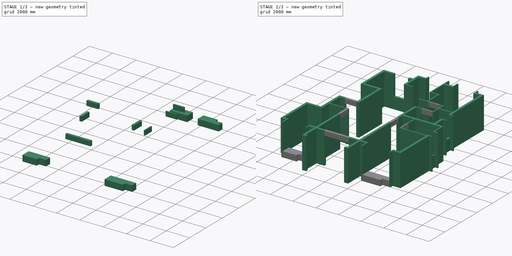
[diagram: build sequence overview — one tinted view per stage of 2, left to right]
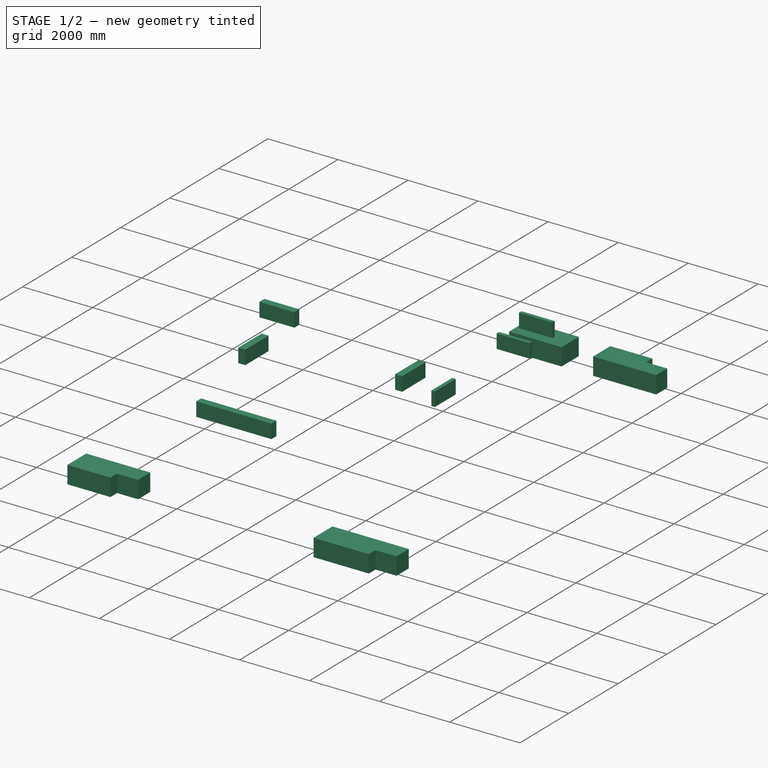
[diagram: stage 1 of 2 — iso view after this stage's code; geometry added in this stage tinted green]
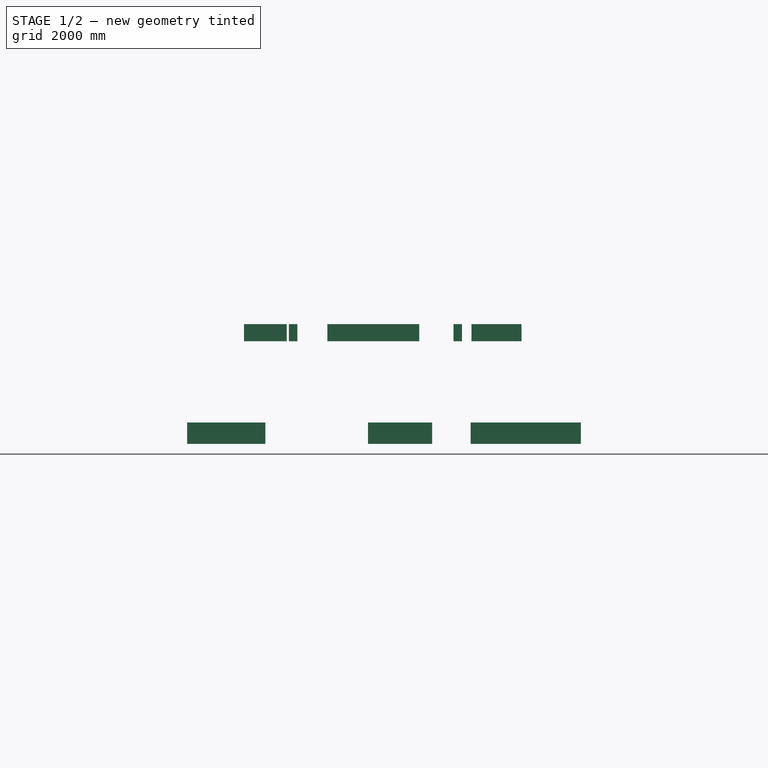
[diagram: stage 1 of 2 — front view after this stage's code; geometry added in this stage tinted green]
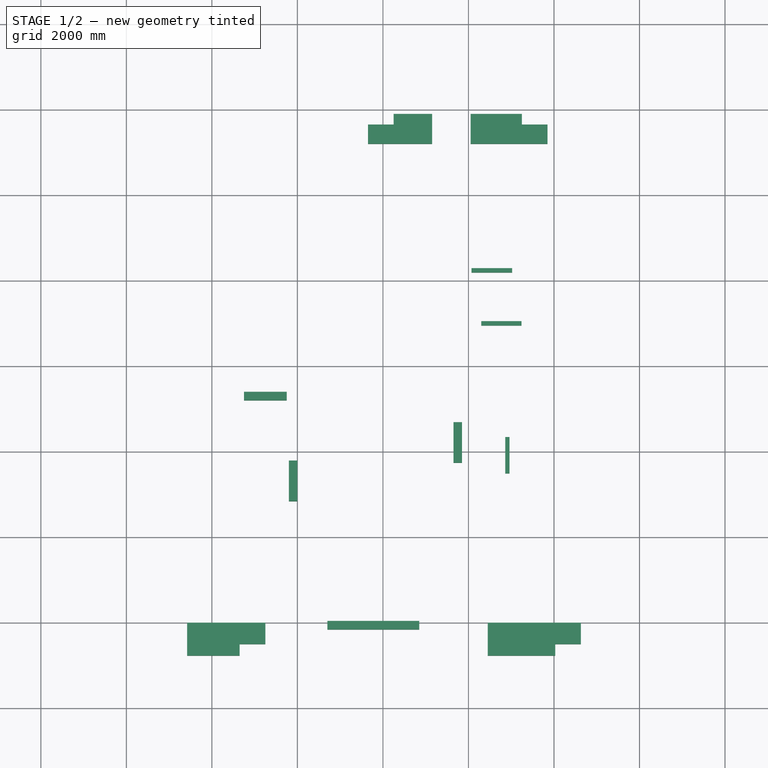
[diagram: stage 1 of 2 — top view after this stage's code; geometry added in this stage tinted green]
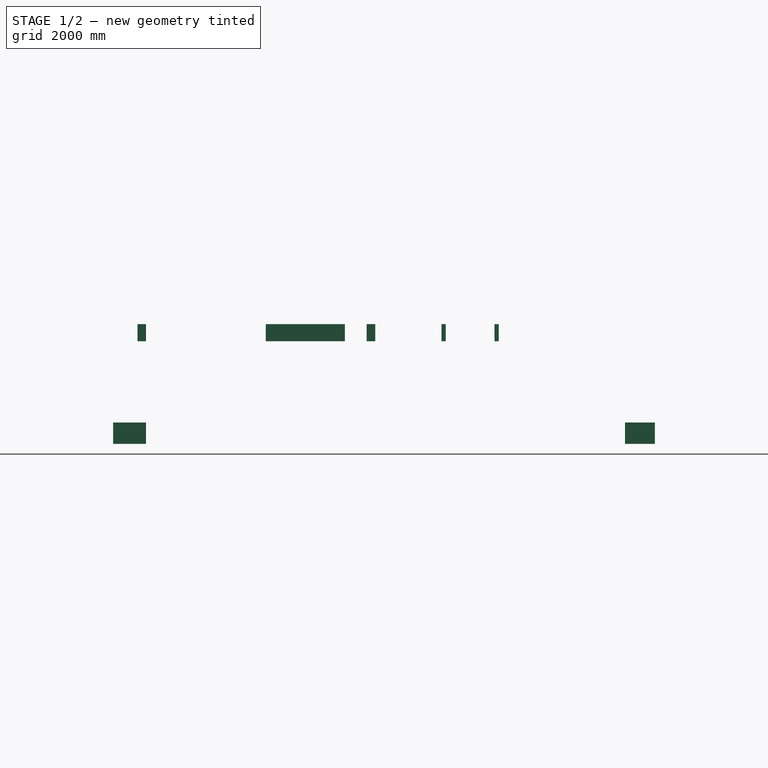
[diagram: stage 1 of 2 — right view after this stage's code; geometry added in this stage tinted green]
FCSTD DOCUMENT  (FreeCAD 1.0R39109 (Git))
Label: qiaoqiao
License: All rights reserved
objects: Sketcher::SketchObject×4, PartDesign::Body×4, PartDesign::Pad×4, App::Part×1, PartDesign::SubShapeBinder×1
note: 25 computed .brp shape members not serialized (recipe doc carries the construction recipe); baked Part::Feature solids carry a one-line shape summary decoded from their .brp

FEATURE [PartDesign::Body] Body001  label="Walls"
  AllowCompound = true
  Group = -> [Binder,Pad]
  Origin = -> Origin002
  Tip = -> Pad
FEATURE [Sketcher::SketchObject] Sketch002
  ArcFitTolerance = 1e-06
  AttachmentSupport = -> [XY_Plane003]
  FullyConstrained = true
  MakeInternals = false
  MapMode = 5
  sketch-geometry (24):
    g0: LineSegment StartX=4450 StartY=0 StartZ=0 EndX=6630 EndY=0 EndZ=0
    g1: LineSegment StartX=6630 StartY=0 StartZ=0 EndX=6630 EndY=-500 EndZ=0
    g2: LineSegment StartX=6630 StartY=-500 StartZ=0 EndX=6030 EndY=-500 EndZ=0
    g3: LineSegment StartX=6030 StartY=-500 StartZ=0 EndX=6030 EndY=-770 EndZ=0
    g4: LineSegment StartX=6030 StartY=-770 StartZ=0 EndX=4450 EndY=-770 EndZ=0
    g5: LineSegment StartX=4450 StartY=-770 StartZ=0 EndX=4450 EndY=0 EndZ=0
    g6: LineSegment StartX=-2580 StartY=0 StartZ=0 EndX=-750 EndY=0 EndZ=0
    g7: LineSegment StartX=-750 StartY=0 StartZ=0 EndX=-750 EndY=-500 EndZ=0
    g8: LineSegment StartX=-750 StartY=-500 StartZ=0 EndX=-1350 EndY=-500 EndZ=0
    g9: LineSegment StartX=-1350 StartY=-500 StartZ=0 EndX=-1350 EndY=-770 EndZ=0
    g10: LineSegment StartX=-1350 StartY=-770 StartZ=0 EndX=-2580 EndY=-770 EndZ=0
    g11: LineSegment StartX=-2580 StartY=-770 StartZ=0 EndX=-2580 EndY=0 EndZ=0
    g12: LineSegment StartX=1650 StartY=11200 StartZ=0 EndX=3150 EndY=11200 EndZ=0
    g13: LineSegment StartX=3150 StartY=11200 StartZ=0 EndX=3150 EndY=11900 EndZ=0
    g14: LineSegment StartX=3150 StartY=11900 StartZ=0 EndX=2250 EndY=11900 EndZ=0
    g15: LineSegment StartX=2250 StartY=11900 StartZ=0 EndX=2250 EndY=11650 EndZ=0
    g16: LineSegment StartX=2250 StartY=11650 StartZ=0 EndX=1650 EndY=11650 EndZ=0
    g17: LineSegment StartX=1650 StartY=11650 StartZ=0 EndX=1650 EndY=11200 EndZ=0
    g18: LineSegment StartX=4050 StartY=11900 StartZ=0 EndX=5250 EndY=11900 EndZ=0
    g19: LineSegment StartX=5250 StartY=11900 StartZ=0 EndX=5250 EndY=11650 EndZ=0
    g20: LineSegment StartX=5250 StartY=11650 StartZ=0 EndX=5850 EndY=11650 EndZ=0
    g21: LineSegment StartX=5850 StartY=11650 StartZ=0 EndX=5850 EndY=11200 EndZ=0
    g22: LineSegment StartX=5850 StartY=11200 StartZ=0 EndX=4050 EndY=11200 EndZ=0
    g23: LineSegment StartX=4050 StartY=11200 StartZ=0 EndX=4050 EndY=11900 EndZ=0
  constraints (72):
    c: Horizontal(g0)
    c: Coincident(g0,g1)
    c: Coincident(g1,g2)
    c: Coincident(g2,g3)
    c: Coincident(g3,g4)
    c: Horizontal(g4)
    c: Coincident(g4,g5)
    c: Coincident(g5,g0)
    c: Vertical(g5)
    c: Vertical(g3)
    c: Vertical(g1)
    c: Horizontal(g2)
    c: PointOnObject(g0,g-1)
    c: DistanceX(g-1,g0) = 4450
    c: DistanceY(g4,g-1) = 770
    c: DistanceX(g-1,g0) = 6630
    c: DistanceY(g1,g-1) = 500
    c: DistanceX(g2,g2) = 600
    c: PointOnObject(g6,g-1)
    c: Coincident(g6,g7)
    c: Vertical(g7)
    c: Coincident(g7,g8)
    c: Horizontal(g8)
    c: Coincident(g8,g9)
    c: Coincident(g9,g10)
    c: Coincident(g10,g11)
    c: Coincident(g11,g6)
    c: Vertical(g11)
    c: Vertical(g9)
    c: Horizontal(g10)
    c: Horizontal(g6)
    c: DistanceX(g8,g8) = 600
    c: DistanceX(g6,g-1) = 750
    c: DistanceY(g7,g7) = 500
    c: DistanceX(g6,g-1) = 2580
    c: DistanceY(g10,g-1) = 770
    c: Horizontal(g12)
    c: Coincident(g12,g13)
    c: Vertical(g13)
    c: Coincident(g13,g14)
    c: Coincident(g14,g15)
    c: Coincident(g15,g16)
    c: Coincident(g16,g17)
    c: Coincident(g17,g12)
    c: Vertical(g17)
    c: Horizontal(g16)
    c: Vertical(g15)
    c: Horizontal(g14)
    c: DistanceX(g-1,g12) = 1650
    c: DistanceY(g-1,g12) = 11200
    c: DistanceX(g-1,g12) = 3150
    c: DistanceY(g-1,g13) = 11900
    c: DistanceY(g-1,g16) = 11650
    c: DistanceX(g16,g16) = 600
    c: Horizontal(g18)
    c: Coincident(g18,g19)
    c: Coincident(g19,g20)
    c: Coincident(g20,g21)
    c: Coincident(g21,g22)
    c: Horizontal(g22)
    c: Coincident(g22,g23)
    c: Coincident(g23,g18)
    c: Vertical(g23)
    c: Vertical(g21)
    c: Horizontal(g20)
    c: Vertical(g19)
    c: PointOnObject(g22,g12)
    c: PointOnObject(g18,g14)
    c: DistanceX(g20,g20) = 600
    c: DistanceX(g-1,g21) = 5850
    c: PointOnObject(g19,g16)
    c: DistanceX(g-1,g22) = 4050
FEATURE [PartDesign::Pad] Pad001
  Direction = (0,0,1)
  Length = 500
  Length2 = 10
  Profile = -> Sketch002
  ReferenceAxis = -> Sketch002 [N_Axis]
  Suppressed = false
  Type = 0
FEATURE [PartDesign::Body] Body002  label="Window Sills"
  AllowCompound = true
  Group = -> [Sketch002,Pad001,Sketch003,Pad002]
  Origin = -> Origin003
  Tip = -> Pad002
FEATURE [Sketcher::SketchObject] Sketch004
  ArcFitTolerance = 1e-06
  AttachmentOffset = pos=(0,0,2800) rot=(0,0,1;0rad)
  AttachmentSupport = -> [XY_Plane004]
  FullyConstrained = true
  MakeInternals = false
  MapMode = 5
  Placement = pos=(0,0,2800) rot=(0,0,1;0rad)
  sketch-geometry (28):
    g0: LineSegment StartX=-200 StartY=3750 StartZ=0 EndX=-200 EndY=2800 EndZ=0
    g1: LineSegment StartX=-200 StartY=2800 StartZ=0 EndX=0 EndY=2800 EndZ=0
    g2: LineSegment StartX=0 StartY=2800 StartZ=0 EndX=0 EndY=3750 EndZ=0
    g3: LineSegment StartX=0 StartY=3750 StartZ=0 EndX=-200 EndY=3750 EndZ=0
    g4: LineSegment StartX=700 StartY=0 StartZ=0 EndX=700 EndY=-200 EndZ=0
    g5: LineSegment StartX=700 StartY=-200 StartZ=0 EndX=2850 EndY=-200 EndZ=0
    g6: LineSegment StartX=2850 StartY=-200 StartZ=0 EndX=2850 EndY=0 EndZ=0
    g7: LineSegment StartX=2850 StartY=0 StartZ=0 EndX=700 EndY=0 EndZ=0
    g8: LineSegment StartX=3650 StartY=4650 StartZ=0 EndX=3650 EndY=3700 EndZ=0
    g9: LineSegment StartX=3650 StartY=3700 StartZ=0 EndX=3850 EndY=3700 EndZ=0
    g10: LineSegment StartX=3850 StartY=3700 StartZ=0 EndX=3850 EndY=4650 EndZ=0
    g11: LineSegment StartX=3850 StartY=4650 StartZ=0 EndX=3650 EndY=4650 EndZ=0
    g12: LineSegment StartX=4070 StartY=8250 StartZ=0 EndX=4070 EndY=8150 EndZ=0
    g13: LineSegment StartX=4070 StartY=8150 StartZ=0 EndX=5020 EndY=8150 EndZ=0
    g14: LineSegment StartX=5020 StartY=8150 StartZ=0 EndX=5020 EndY=8250 EndZ=0
    g15: LineSegment StartX=5020 StartY=8250 StartZ=0 EndX=4070 EndY=8250 EndZ=0
    g16: LineSegment StartX=4860 StartY=4300 StartZ=0 EndX=4860 EndY=3450 EndZ=0
    g17: LineSegment StartX=4860 StartY=3450 StartZ=0 EndX=4960 EndY=3450 EndZ=0
    g18: LineSegment StartX=4960 StartY=3450 StartZ=0 EndX=4960 EndY=4300 EndZ=0
    g19: LineSegment StartX=4960 StartY=4300 StartZ=0 EndX=4860 EndY=4300 EndZ=0
    g20: LineSegment StartX=4300 StartY=7010 StartZ=0 EndX=4300 EndY=6910 EndZ=0
    g21: LineSegment StartX=4300 StartY=6910 StartZ=0 EndX=5240 EndY=6910 EndZ=0
    g22: LineSegment StartX=5240 StartY=6910 StartZ=0 EndX=5240 EndY=7010 EndZ=0
    g23: LineSegment StartX=5240 StartY=7010 StartZ=0 EndX=4300 EndY=7010 EndZ=0
    g24: LineSegment StartX=-1250 StartY=5360 StartZ=0 EndX=-1250 EndY=5160 EndZ=0
    g25: LineSegment StartX=-1250 StartY=5160 StartZ=0 EndX=-250 EndY=5160 EndZ=0
    g26: LineSegment StartX=-250 StartY=5160 StartZ=0 EndX=-250 EndY=5360 EndZ=0
    g27: LineSegment StartX=-250 StartY=5360 StartZ=0 EndX=-1250 EndY=5360 EndZ=0
  constraints (84):
    c: Coincident(g0,g1)
    c: Coincident(g1,g2)
    c: Coincident(g2,g3)
    c: Coincident(g3,g0)
    c: Vertical(g0)
    c: Vertical(g2)
    c: Horizontal(g1)
    c: Horizontal(g3)
    c: PointOnObject(g2,g-2)
    c: Distance(g3,g3) = 200
    c: DistanceY(g-1,g2) = 3750
    c: Coincident(g4,g5)
    c: Coincident(g5,g6)
    c: Coincident(g6,g7)
    c: Coincident(g7,g4)
    c: Vertical(g4)
    c: Vertical(g6)
    c: Horizontal(g5)
    c: Horizontal(g7)
    c: PointOnObject(g4,g-1)
    c: Distance(g4,g4) = 200
    c: Distance(g4,g-1) = 700
    c: Coincident(g8,g9)
    c: Coincident(g9,g10)
    c: Coincident(g10,g11)
    c: Coincident(g11,g8)
    c: Vertical(g8)
    c: Vertical(g10)
    c: Horizontal(g9)
    c: Horizontal(g11)
    c: Distance(g11,g11) = 200
    c: DistanceY(g-1,g8) = 4650
    c: DistanceX(g-1,g8) = 3650
    c: Coincident(g12,g13)
    c: Coincident(g13,g14)
    c: Coincident(g14,g15)
    c: Coincident(g15,g12)
    c: Vertical(g12)
    c: Vertical(g14)
    c: Horizontal(g13)
    c: Horizontal(g15)
    c: Distance(g12,g12) = 100
    c: DistanceY(g-1,g12) = 8150
    c: DistanceX(g-1,g12) = 4070
    c: Coincident(g16,g17)
    c: Coincident(g17,g18)
    c: Coincident(g18,g19)
    c: Coincident(g19,g16)
    c: Vertical(g16)
    c: Vertical(g18)
    c: Horizontal(g17)
    c: Horizontal(g19)
    c: Distance(g19,g19) = 100
    c: DistanceY(g-1,g16) = 4300
    c: DistanceX(g-1,g16) = 4860
    c: Coincident(g20,g21)
    c: Coincident(g21,g22)
    c: Coincident(g22,g23)
    c: Coincident(g23,g20)
    c: Vertical(g20)
    c: Vertical(g22)
    c: Horizontal(g21)
    c: Horizontal(g23)
    c: Distance(g20,g20) = 100
    c: DistanceY(g-1,g20) = 7010
    c: DistanceX(g-1,g20) = 4300
    c: DistanceX(g21,g21) = 940
    c: DistanceX(g13,g13) = 950
    c: DistanceY(g8,g8) = 950
    c: DistanceY(g18,g18) = 850
    c: DistanceY(g0,g0) = 950
    c: DistanceX(g5,g5) = 2150
    c: Coincident(g24,g25)
    c: Coincident(g25,g26)
    c: Coincident(g26,g27)
    c: Coincident(g27,g24)
    c: Vertical(g24)
    c: Vertical(g26)
    c: Horizontal(g25)
    c: Horizontal(g27)
    c: Distance(g26,g26) = 200
    c: DistanceX(g25,g-1) = 250
    c: DistanceX(g25,g25) = 1000
    c: DistanceY(g-1,g25) = 5160
FEATURE [PartDesign::Pad] Pad003
  Direction = (0,0,1)
  Length = 400
  Length2 = 10
  Profile = -> Sketch004
  ReferenceAxis = -> Sketch004 [N_Axis]
  Reversed = true
  Suppressed = false
  Type = 0
FEATURE [PartDesign::Body] Body003  label="Beams"
  AllowCompound = true
  Group = -> [Sketch004,Pad003]
  Origin = -> Origin004
  Tip = -> Pad003
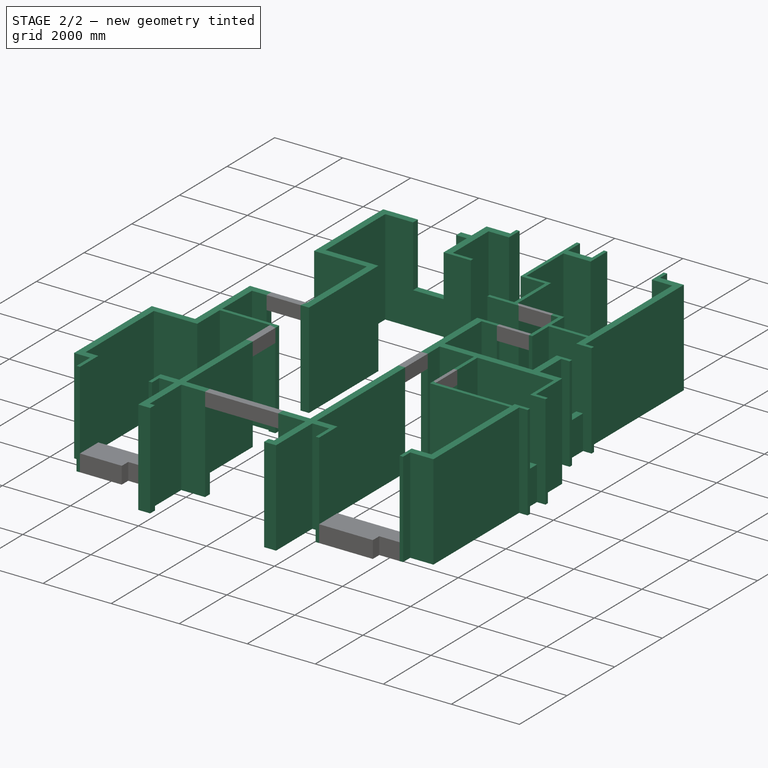
[diagram: stage 2 of 2 — iso view after this stage's code; geometry added in this stage tinted green]
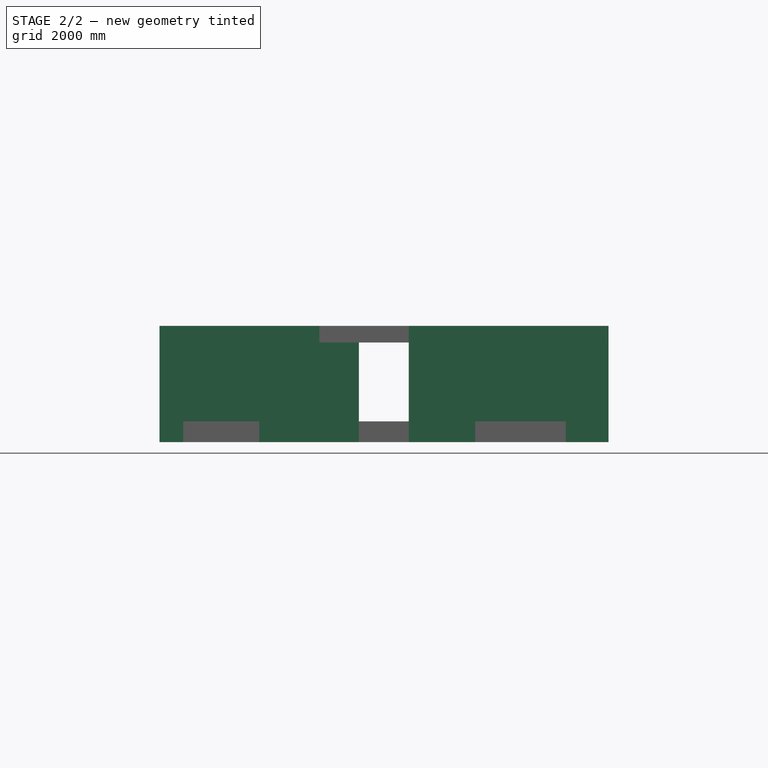
[diagram: stage 2 of 2 — front view after this stage's code; geometry added in this stage tinted green]
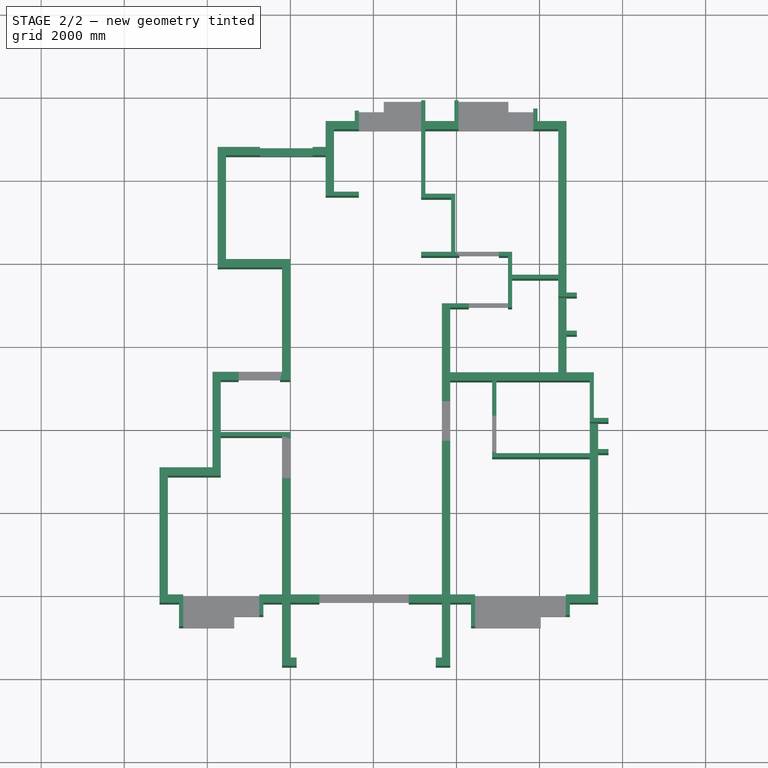
[diagram: stage 2 of 2 — top view after this stage's code; geometry added in this stage tinted green]
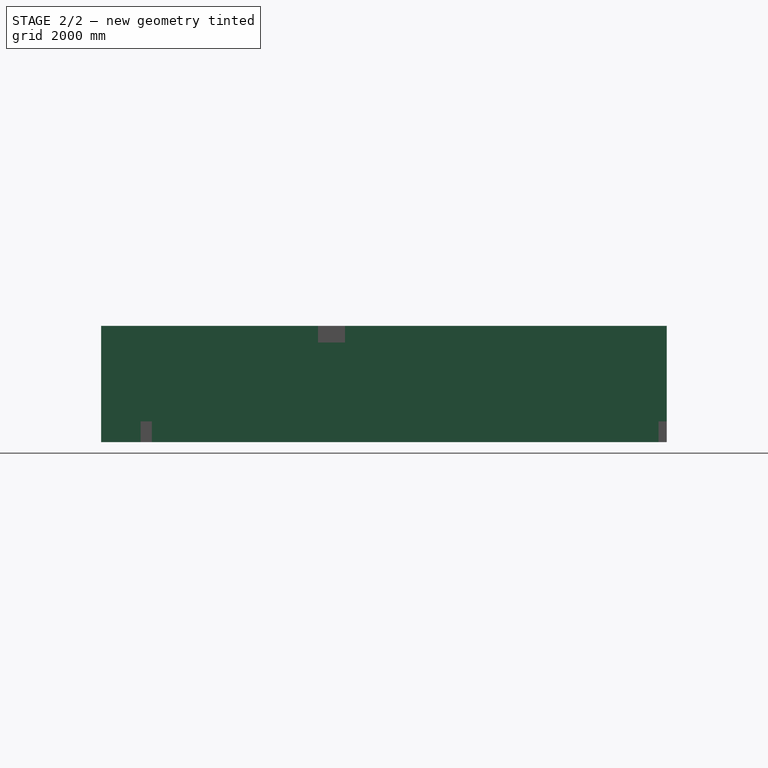
[diagram: stage 2 of 2 — right view after this stage's code; geometry added in this stage tinted green]
FEATURE [Sketcher::SketchObject] Sketch
  ArcFitTolerance = 1e-06
  AttachmentSupport = -> [XY_Plane001]
  FullyConstrained = true
  MakeInternals = false
  MapMode = 5
  sketch-geometry (176):
    g0: LineSegment StartX=0 StartY=0 StartZ=0 EndX=0 EndY=2800 EndZ=0
    g1: LineSegment StartX=3650 StartY=0 StartZ=0 EndX=3650 EndY=3700 EndZ=0
    g2: LineSegment StartX=3650 StartY=3700 StartZ=0 EndX=3850 EndY=3700 EndZ=0
    g3: LineSegment StartX=3850 StartY=3700 StartZ=0 EndX=3850 EndY=0 EndZ=0
    g4: LineSegment StartX=7210 StartY=0 StartZ=0 EndX=7210 EndY=3300 EndZ=0
    g5: LineSegment StartX=7210 StartY=3300 StartZ=0 EndX=4860 EndY=3300 EndZ=0
    g6: LineSegment StartX=4860 StartY=3300 StartZ=0 EndX=4860 EndY=3450 EndZ=0
    g7: LineSegment StartX=4860 StartY=3450 StartZ=0 EndX=4960 EndY=3450 EndZ=0
    g8: LineSegment StartX=4960 StartY=3450 StartZ=0 EndX=4960 EndY=3400 EndZ=0
    g9: LineSegment StartX=4960 StartY=3400 StartZ=0 EndX=7210 EndY=3400 EndZ=0
    g10: LineSegment [constr] StartX=7210 StartY=3400 StartZ=0 EndX=7210 EndY=3300 EndZ=0
    g11: LineSegment StartX=0 StartY=0 StartZ=0 EndX=700 EndY=0 EndZ=0
    g12: LineSegment StartX=700 StartY=0 StartZ=0 EndX=700 EndY=-200 EndZ=0
    g13: LineSegment StartX=700 StartY=-200 StartZ=0 EndX=0 EndY=-200 EndZ=0
    g14: LineSegment StartX=0 StartY=-200 StartZ=0 EndX=0 EndY=-1520 EndZ=0
    g15: LineSegment StartX=0 StartY=-1520 StartZ=0 EndX=150 EndY=-1520 EndZ=0
    g16: LineSegment StartX=150 StartY=-1520 StartZ=0 EndX=150 EndY=-1720 EndZ=0
    g17: LineSegment StartX=150 StartY=-1720 StartZ=0 EndX=-200 EndY=-1720 EndZ=0
    g18: LineSegment StartX=-200 StartY=-1720 StartZ=0 EndX=-200 EndY=-200 EndZ=0
    g19: LineSegment StartX=-200 StartY=-200 StartZ=0 EndX=-650 EndY=-200 EndZ=0
    g20: LineSegment StartX=-650 StartY=-200 StartZ=0 EndX=-650 EndY=-500 EndZ=0
    g21: LineSegment StartX=-650 StartY=-500 StartZ=0 EndX=-750 EndY=-500 EndZ=0
    g22: LineSegment StartX=-750 StartY=-500 StartZ=0 EndX=-750 EndY=0 EndZ=0
    g23: LineSegment StartX=-750 StartY=0 StartZ=0 EndX=-200 EndY=0 EndZ=0
    g24: LineSegment StartX=-200 StartY=0 StartZ=0 EndX=-200 EndY=2800 EndZ=0
    g25: LineSegment StartX=-200 StartY=2800 StartZ=0 EndX=0 EndY=2800 EndZ=0
    g26: LineSegment StartX=3650 StartY=0 StartZ=0 EndX=2850 EndY=0 EndZ=0
    g27: LineSegment StartX=2850 StartY=0 StartZ=0 EndX=2850 EndY=-200 EndZ=0
    g28: LineSegment StartX=2850 StartY=-200 StartZ=0 EndX=3650 EndY=-200 EndZ=0
    g29: LineSegment StartX=3650 StartY=-200 StartZ=0 EndX=3650 EndY=-1520 EndZ=0
    g30: LineSegment StartX=3650 StartY=-1520 StartZ=0 EndX=3500 EndY=-1520 EndZ=0
    g31: LineSegment StartX=3500 StartY=-1520 StartZ=0 EndX=3500 EndY=-1720 EndZ=0
    g32: LineSegment StartX=3500 StartY=-1720 StartZ=0 EndX=3850 EndY=-1720 EndZ=0
    g33: LineSegment StartX=3850 StartY=-1720 StartZ=0 EndX=3850 EndY=-200 EndZ=0
    g34: LineSegment StartX=3850 StartY=-200 StartZ=0 EndX=4350 EndY=-200 EndZ=0
    g35: LineSegment StartX=4350 StartY=-200 StartZ=0 EndX=4350 EndY=-770 EndZ=0
    g36: LineSegment StartX=4350 StartY=-770 StartZ=0 EndX=4450 EndY=-770 EndZ=0
    g37: LineSegment StartX=4450 StartY=-770 StartZ=0 EndX=4450 EndY=0 EndZ=0
    g38: LineSegment StartX=4450 StartY=0 StartZ=0 EndX=3850 EndY=0 EndZ=0
    g39: LineSegment StartX=-2950 StartY=0 StartZ=0 EndX=-2580 EndY=0 EndZ=0
    g40: LineSegment StartX=-2580 StartY=0 StartZ=0 EndX=-2580 EndY=-770 EndZ=0
    g41: LineSegment StartX=-2580 StartY=-770 StartZ=0 EndX=-2680 EndY=-770 EndZ=0
    g42: LineSegment StartX=-2680 StartY=-770 StartZ=0 EndX=-2680 EndY=-200 EndZ=0
    g43: LineSegment StartX=-2680 StartY=-200 StartZ=0 EndX=-3150 EndY=-200 EndZ=0
    g44: LineSegment StartX=-3150 StartY=-200 StartZ=0 EndX=-3150 EndY=3060 EndZ=0
    g45: LineSegment StartX=-3150 StartY=3060 StartZ=0 EndX=-1875 EndY=3060 EndZ=0
    g46: LineSegment StartX=-1875 StartY=3060 StartZ=0 EndX=-1875 EndY=5360 EndZ=0
    g47: LineSegment StartX=-1875 StartY=5360 StartZ=0 EndX=-1245 EndY=5360 EndZ=0
    g48: LineSegment StartX=-1245 StartY=5360 StartZ=0 EndX=-1245 EndY=5160 EndZ=0
    g49: LineSegment StartX=-1245 StartY=5160 StartZ=0 EndX=-1675 EndY=5160 EndZ=0
    g50: LineSegment StartX=-1675 StartY=5160 StartZ=0 EndX=-1675 EndY=3910 EndZ=0
    g51: LineSegment StartX=-1675 StartY=3910 StartZ=0 EndX=0 EndY=3910 EndZ=0
    g52: LineSegment StartX=0 StartY=3910 StartZ=0 EndX=0 EndY=3750 EndZ=0
    g53: LineSegment StartX=0 StartY=3750 StartZ=0 EndX=-200 EndY=3750 EndZ=0
    g54: LineSegment StartX=-200 StartY=3750 StartZ=0 EndX=-200 EndY=3810 EndZ=0
    g55: LineSegment StartX=-200 StartY=3810 StartZ=0 EndX=-1675 EndY=3810 EndZ=0
    g56: LineSegment StartX=-1675 StartY=3810 StartZ=0 EndX=-1675 EndY=2860 EndZ=0
    g57: LineSegment StartX=-1675 StartY=2860 StartZ=0 EndX=-2950 EndY=2860 EndZ=0
    g58: LineSegment StartX=-2950 StartY=2860 StartZ=0 EndX=-2950 EndY=0 EndZ=0
    g59: LineSegment [constr] StartX=-2950 StartY=0 StartZ=0 EndX=-3150 EndY=0 EndZ=0
    g60: LineSegment [constr] StartX=-2950 StartY=2860 StartZ=0 EndX=-2950 EndY=3060 EndZ=0
    g61: LineSegment [constr] StartX=-1875 StartY=3060 StartZ=0 EndX=-1675 EndY=3060 EndZ=0
    g62: LineSegment [constr] StartX=-1675 StartY=3810 StartZ=0 EndX=-1675 EndY=3910 EndZ=0
    g63: LineSegment StartX=7210 StartY=0 StartZ=0 EndX=6630 EndY=0 EndZ=0
    g64: LineSegment StartX=6630 StartY=0 StartZ=0 EndX=6630 EndY=-500 EndZ=0
    g65: LineSegment StartX=6630 StartY=-500 StartZ=0 EndX=6730 EndY=-500 EndZ=0
    g66: LineSegment StartX=6730 StartY=-500 StartZ=0 EndX=6730 EndY=-200 EndZ=0
    g67: LineSegment StartX=6730 StartY=-200 StartZ=0 EndX=7410 EndY=-200 EndZ=0
    g68: LineSegment StartX=7410 StartY=-200 StartZ=0 EndX=7410 EndY=3400 EndZ=0
    g69: LineSegment [constr] StartX=7210 StartY=0 StartZ=0 EndX=7410 EndY=0 EndZ=0
    g70: LineSegment StartX=0 StartY=5160 StartZ=0 EndX=0 EndY=8075 EndZ=0
    g71: LineSegment StartX=-200 StartY=5360 StartZ=0 EndX=-200 EndY=7875 EndZ=0
    g72: LineSegment StartX=-200 StartY=5360 StartZ=0 EndX=-250 EndY=5360 EndZ=0
    g73: LineSegment StartX=-250 StartY=5360 StartZ=0 EndX=-250 EndY=5160 EndZ=0
    g74: LineSegment StartX=-250 StartY=5160 StartZ=0 EndX=0 EndY=5160 EndZ=0
    g75: LineSegment [constr] StartX=-200 StartY=5360 StartZ=0 EndX=0 EndY=5360 EndZ=0
    g76: LineSegment StartX=0 StartY=8075 StartZ=0 EndX=-1550 EndY=8075 EndZ=0
    g77: LineSegment StartX=-1550 StartY=8075 StartZ=0 EndX=-1550 EndY=10575 EndZ=0
    g78: LineSegment StartX=-1550 StartY=10575 StartZ=0 EndX=-730 EndY=10575 EndZ=0
    g79: LineSegment StartX=-730 StartY=10575 StartZ=0 EndX=-730 EndY=10775 EndZ=0
    g80: LineSegment StartX=-730 StartY=10775 StartZ=0 EndX=-1750 EndY=10775 EndZ=0
    g81: LineSegment StartX=-1750 StartY=10775 StartZ=0 EndX=-1750 EndY=7875 EndZ=0
    g82: LineSegment StartX=-1750 StartY=7875 StartZ=0 EndX=-200 EndY=7875 EndZ=0
    g83: LineSegment [constr] StartX=-200 StartY=7875 StartZ=0 EndX=-200 EndY=8075 EndZ=0
    g84: LineSegment [constr] StartX=-1550 StartY=8075 StartZ=0 EndX=-1750 EndY=8075 EndZ=0
    g85: LineSegment StartX=850 StartY=10775 StartZ=0 EndX=536 EndY=10775 EndZ=0
    g86: LineSegment StartX=536 StartY=10775 StartZ=0 EndX=536 EndY=10575 EndZ=0
    g87: LineSegment StartX=536 StartY=10575 StartZ=0 EndX=850 EndY=10575 EndZ=0
    g88: LineSegment StartX=850 StartY=10575 StartZ=0 EndX=850 EndY=9700 EndZ=0
    g89: LineSegment [constr] StartX=850 StartY=9700 StartZ=0 EndX=1050 EndY=9700 EndZ=0
    g90: LineSegment StartX=1050 StartY=9700 StartZ=0 EndX=1050 EndY=11200 EndZ=0
    g91: LineSegment StartX=1050 StartY=11200 StartZ=0 EndX=1650 EndY=11200 EndZ=0
    g92: LineSegment StartX=1650 StartY=11200 StartZ=0 EndX=1650 EndY=11650 EndZ=0
    g93: LineSegment StartX=1650 StartY=11650 StartZ=0 EndX=1550 EndY=11650 EndZ=0
    g94: LineSegment StartX=1550 StartY=11650 StartZ=0 EndX=1550 EndY=11400 EndZ=0
    g95: LineSegment StartX=1550 StartY=11400 StartZ=0 EndX=850 EndY=11400 EndZ=0
    g96: LineSegment StartX=850 StartY=11400 StartZ=0 EndX=850 EndY=10775 EndZ=0
    g97: LineSegment [constr] StartX=1050 StartY=11200 StartZ=0 EndX=1050 EndY=11400 EndZ=0
    g98: LineSegment StartX=3150 StartY=11900 StartZ=0 EndX=3250 EndY=11900 EndZ=0
    g99: LineSegment StartX=3250 StartY=11400 StartZ=0 EndX=3250 EndY=11900 EndZ=0
    g100: LineSegment StartX=3250 StartY=11400 StartZ=0 EndX=3950 EndY=11400 EndZ=0
    g101: LineSegment StartX=3950 StartY=11400 StartZ=0 EndX=3950 EndY=11900 EndZ=0
    g102: LineSegment StartX=3950 StartY=11900 StartZ=0 EndX=4050 EndY=11900 EndZ=0
    g103: LineSegment StartX=4050 StartY=11900 StartZ=0 EndX=4050 EndY=11200 EndZ=0
    g104: LineSegment StartX=4050 StartY=11200 StartZ=0 EndX=3250 EndY=11200 EndZ=0
    g105: LineSegment StartX=3250 StartY=11200 StartZ=0 EndX=3250 EndY=9650 EndZ=0
    g106: LineSegment StartX=3250 StartY=9650 StartZ=0 EndX=3970 EndY=9650 EndZ=0
    g107: LineSegment StartX=4070 StartY=8150 StartZ=0 EndX=3150 EndY=8150 EndZ=0
    g108: LineSegment StartX=3150 StartY=8150 StartZ=0 EndX=3150 EndY=8250 EndZ=0
    g109: LineSegment StartX=3150 StartY=8250 StartZ=0 EndX=3870 EndY=8250 EndZ=0
    g110: LineSegment StartX=3870 StartY=8250 StartZ=0 EndX=3870 EndY=9550 EndZ=0
    g111: LineSegment StartX=3870 StartY=9550 StartZ=0 EndX=3150 EndY=9550 EndZ=0
    g112: LineSegment [constr] StartX=3250 StartY=9650 StartZ=0 EndX=3250 EndY=9550 EndZ=0
    g113: LineSegment StartX=7410 StartY=3400 StartZ=0 EndX=7660 EndY=3400 EndZ=0
    g114: LineSegment StartX=7660 StartY=3400 StartZ=0 EndX=7660 EndY=3500 EndZ=0
    g115: LineSegment StartX=7660 StartY=3500 StartZ=0 EndX=7210 EndY=3500 EndZ=0
    g116: LineSegment StartX=7210 StartY=3500 StartZ=0 EndX=7210 EndY=3400 EndZ=0
    g117: LineSegment StartX=3650 StartY=7010 StartZ=0 EndX=3650 EndY=4650 EndZ=0
    g118: LineSegment StartX=3650 StartY=4650 StartZ=0 EndX=3850 EndY=4650 EndZ=0
    g119: LineSegment StartX=3850 StartY=4650 StartZ=0 EndX=3850 EndY=5150 EndZ=0
    g120: LineSegment StartX=3850 StartY=5150 StartZ=0 EndX=4860 EndY=5150 EndZ=0
    g121: LineSegment StartX=4860 StartY=5150 StartZ=0 EndX=4860 EndY=4300 EndZ=0
    g122: LineSegment StartX=4860 StartY=4300 StartZ=0 EndX=4960 EndY=4300 EndZ=0
    g123: LineSegment StartX=4960 StartY=4300 StartZ=0 EndX=4960 EndY=5150 EndZ=0
    g124: LineSegment StartX=4960 StartY=5150 StartZ=0 EndX=7210 EndY=5150 EndZ=0
    g125: LineSegment StartX=7210 StartY=5150 StartZ=0 EndX=7210 EndY=4150 EndZ=0
    g126: LineSegment StartX=7210 StartY=4150 StartZ=0 EndX=7660 EndY=4150 EndZ=0
    g127: LineSegment StartX=7660 StartY=4150 StartZ=0 EndX=7660 EndY=4250 EndZ=0
    g128: LineSegment StartX=7660 StartY=4250 StartZ=0 EndX=7310 EndY=4250 EndZ=0
    g129: LineSegment StartX=7310 StartY=4250 StartZ=0 EndX=7310 EndY=5350 EndZ=0
    g130: LineSegment StartX=7310 StartY=5350 StartZ=0 EndX=6650 EndY=5350 EndZ=0
    g131: LineSegment StartX=6650 StartY=5350 StartZ=0 EndX=6650 EndY=6250 EndZ=0
    g132: LineSegment StartX=6650 StartY=6250 StartZ=0 EndX=6900 EndY=6250 EndZ=0
    g133: LineSegment StartX=6900 StartY=6250 StartZ=0 EndX=6900 EndY=6350 EndZ=0
    g134: LineSegment StartX=6900 StartY=6350 StartZ=0 EndX=6450 EndY=6350 EndZ=0
    g135: LineSegment StartX=6450 StartY=6350 StartZ=0 EndX=6450 EndY=5350 EndZ=0
    g136: LineSegment StartX=6450 StartY=5350 StartZ=0 EndX=3850 EndY=5350 EndZ=0
    g137: LineSegment StartX=3850 StartY=5350 StartZ=0 EndX=3850 EndY=6910 EndZ=0
    g138: LineSegment StartX=3850 StartY=6910 StartZ=0 EndX=4300 EndY=6910 EndZ=0
    g139: LineSegment StartX=4300 StartY=6910 StartZ=0 EndX=4300 EndY=7010 EndZ=0
    g140: LineSegment StartX=4300 StartY=7010 StartZ=0 EndX=3650 EndY=7010 EndZ=0
    g141: LineSegment [constr] StartX=3850 StartY=5350 StartZ=0 EndX=3850 EndY=5150 EndZ=0
    g142: LineSegment [constr] StartX=7210 StartY=5150 StartZ=0 EndX=7310 EndY=5150 EndZ=0
    g143: LineSegment [constr] StartX=6450 StartY=5350 StartZ=0 EndX=6650 EndY=5350 EndZ=0
    g144: LineSegment StartX=5340 StartY=8250 StartZ=0 EndX=5020 EndY=8250 EndZ=0
    g145: LineSegment StartX=5020 StartY=8250 StartZ=0 EndX=5020 EndY=8150 EndZ=0
    g146: LineSegment StartX=5020 StartY=8150 StartZ=0 EndX=5240 EndY=8150 EndZ=0
    g147: LineSegment StartX=5240 StartY=8150 StartZ=0 EndX=5240 EndY=6910 EndZ=0
    g148: LineSegment StartX=5240 StartY=6910 StartZ=0 EndX=5340 EndY=6910 EndZ=0
    g149: LineSegment StartX=5340 StartY=6910 StartZ=0 EndX=5340 EndY=7600 EndZ=0
    g150: LineSegment StartX=5340 StartY=7600 StartZ=0 EndX=6450 EndY=7600 EndZ=0
    g151: LineSegment StartX=6450 StartY=7600 StartZ=0 EndX=6450 EndY=7170 EndZ=0
    g152: LineSegment StartX=6450 StartY=7170 StartZ=0 EndX=6900 EndY=7170 EndZ=0
    g153: LineSegment StartX=6900 StartY=7170 StartZ=0 EndX=6900 EndY=7270 EndZ=0
    g154: LineSegment StartX=6900 StartY=7270 StartZ=0 EndX=6650 EndY=7270 EndZ=0
    g155: LineSegment StartX=6650 StartY=7270 StartZ=0 EndX=6650 EndY=11400 EndZ=0
    g156: LineSegment StartX=5340 StartY=8250 StartZ=0 EndX=5340 EndY=7700 EndZ=0
    g157: LineSegment StartX=5340 StartY=7700 StartZ=0 EndX=6450 EndY=7700 EndZ=0
    g158: LineSegment StartX=6450 StartY=7700 StartZ=0 EndX=6450 EndY=11200 EndZ=0
    g159: LineSegment [constr] StartX=5340 StartY=7600 StartZ=0 EndX=5340 EndY=7700 EndZ=0
    g160: LineSegment [constr] StartX=6650 StartY=7270 StartZ=0 EndX=6450 EndY=7270 EndZ=0
    g161: LineSegment StartX=6450 StartY=11200 StartZ=0 EndX=5850 EndY=11200 EndZ=0
    g162: LineSegment StartX=6650 StartY=11400 StartZ=0 EndX=5950 EndY=11400 EndZ=0
    g163: LineSegment StartX=5950 StartY=11400 StartZ=0 EndX=5950 EndY=11700 EndZ=0
    g164: LineSegment StartX=5950 StartY=11700 StartZ=0 EndX=5850 EndY=11700 EndZ=0
    g165: LineSegment StartX=5850 StartY=11700 StartZ=0 EndX=5850 EndY=11200 EndZ=0
    g166: LineSegment StartX=3970 StartY=9650 StartZ=0 EndX=3970 EndY=8250 EndZ=0
    g167: LineSegment StartX=3970 StartY=8250 StartZ=0 EndX=4070 EndY=8250 EndZ=0
    g168: LineSegment StartX=4070 StartY=8250 StartZ=0 EndX=4070 EndY=8150 EndZ=0
    g169: LineSegment [constr] StartX=3970 StartY=8250 StartZ=0 EndX=3870 EndY=8250 EndZ=0
    g170: LineSegment StartX=3150 StartY=11900 StartZ=0 EndX=3150 EndY=11200 EndZ=0
    g171: LineSegment StartX=3150 StartY=11200 StartZ=0 EndX=3150 EndY=9550 EndZ=0
    g172: LineSegment StartX=850 StartY=9700 StartZ=0 EndX=850 EndY=9600 EndZ=0
    g173: LineSegment StartX=850 StartY=9600 StartZ=0 EndX=1650 EndY=9600 EndZ=0
    g174: LineSegment StartX=1650 StartY=9600 StartZ=0 EndX=1650 EndY=9700 EndZ=0
    g175: LineSegment StartX=1650 StartY=9700 StartZ=0 EndX=1050 EndY=9700 EndZ=0
  constraints (520):
    c: Coincident(g0,g-1)
    c: PointOnObject(g0,g-2)
    c: PointOnObject(g1,g-1)
    c: DistanceY(g0,g0) = 2800
    c: Vertical(g1)
    c: DistanceY(g1,g1) = 3700
    c: Coincident(g2,g1)
    c: Horizontal(g2)
    c: Coincident(g3,g2)
    c: PointOnObject(g3,g-1)
    c: Vertical(g3)
    c: PointOnObject(g4,g-1)
    c: DistanceX(g3,g4) = 3360
    c: Distance(g2,g2) = 200
    c: Vertical(g4)
    c: Coincident(g4,g5)
    c: Horizontal(g5)
    c: Coincident(g5,g6)
    c: Vertical(g6)
    c: Coincident(g6,g7)
    c: Horizontal(g7)
    c: Coincident(g7,g8)
    c: Coincident(g8,g9)
    c: Horizontal(g9)
    c: PointOnObject(g9,g4)
    c: Vertical(g8)
    c: Coincident(g10,g9)
    c: Coincident(g10,g4)
    c: Equal(g7,g10)
    c: Coincident(g0,g11)
    c: Coincident(g11,g12)
    c: Vertical(g12)
    c: Coincident(g12,g13)
    c: PointOnObject(g13,g-2)
    c: Horizontal(g13)
    c: Coincident(g13,g14)
    c: PointOnObject(g14,g-2)
    c: Coincident(g14,g15)
    c: Horizontal(g15)
    c: Coincident(g15,g16)
    c: Vertical(g16)
    c: Coincident(g16,g17)
    c: Horizontal(g17)
    c: Coincident(g17,g18)
    c: Vertical(g18)
    c: Coincident(g18,g19)
    c: Horizontal(g19)
    c: Coincident(g19,g20)
    c: Vertical(g20)
    c: Coincident(g20,g21)
    c: Coincident(g21,g22)
    c: PointOnObject(g22,g-1)
    c: Vertical(g22)
    c: Coincident(g22,g23)
    c: PointOnObject(g23,g-1)
    c: Coincident(g23,g24)
    c: Vertical(g24)
    c: Coincident(g24,g25)
    c: Coincident(g25,g0)
    c: Horizontal(g25)
    c: Equal(g25,g2)
    c: PointOnObject(g18,g24)
    c: Equal(g25,g12)
    c: PointOnObject(g18,g13)
    c: Horizontal(g21)
    c: Equal(g25,g16)
    c: DistanceY(g14,g14) = 1320
    c: Coincident(g26,g27)
    c: Vertical(g27)
    c: Coincident(g27,g28)
    c: Horizontal(g28)
    c: Coincident(g28,g29)
    c: Vertical(g29)
    c: Coincident(g29,g30)
    c: Horizontal(g30)
    c: Coincident(g30,g31)
    c: Vertical(g31)
    c: Coincident(g31,g32)
    c: Coincident(g32,g33)
    c: Vertical(g33)
    c: Coincident(g33,g34)
    c: Coincident(g34,g35)
    c: Vertical(g35)
    c: Coincident(g35,g36)
    c: Horizontal(g36)
    c: Coincident(g36,g37)
    c: Coincident(g37,g38)
    c: Coincident(g38,g3)
    c: Horizontal(g32)
    c: Equal(g12,g27)
    c: PointOnObject(g28,g1)
    c: PointOnObject(g33,g3)
    c: Horizontal(g34)
    c: Vertical(g37)
    c: Equal(g16,g31)
    c: PointOnObject(g33,g28)
    c: PointOnObject(g15,g30)
    c: PointOnObject(g39,g-1)
    c: PointOnObject(g39,g-1)
    c: Coincident(g39,g40)
    c: Vertical(g40)
    c: Coincident(g40,g41)
    c: Horizontal(g41)
    c: Coincident(g41,g42)
    c: Vertical(g42)
    c: Coincident(g42,g43)
    c: Horizontal(g43)
    c: Coincident(g43,g44)
    c: Vertical(g44)
    c: Coincident(g44,g45)
    c: Horizontal(g45)
    c: Coincident(g45,g46)
    c: Vertical(g46)
    c: Coincident(g46,g47)
    c: Coincident(g47,g48)
    c: Coincident(g48,g49)
    c: Coincident(g49,g50)
    c: Coincident(g50,g51)
    c: PointOnObject(g51,g-2)
    c: Horizontal(g51)
    c: Coincident(g51,g52)
    c: PointOnObject(g52,g-2)
    c: Coincident(g52,g53)
    c: Horizontal(g53)
    c: Coincident(g53,g54)
    c: Coincident(g54,g55)
    c: Horizontal(g55)
    c: Coincident(g55,g56)
    c: Coincident(g56,g57)
    c: Coincident(g57,g58)
    c: Coincident(g58,g39)
    c: Vertical(g58)
    c: Vertical(g50)
    c: Vertical(g56)
    c: Vertical(g48)
    c: Horizontal(g47)
    c: Horizontal(g49)
    c: Horizontal(g57)
    c: Equal(g41,g21)
    c: PointOnObject(g26,g-1)
    c: PointOnObject(g11,g-1)
    c: PointOnObject(g42,g19)
    c: Equal(g21,g36)
    c: DistanceX(g39,g23) = 2750
    c: Distance(g36,g36) = 100
    c: Coincident(g59,g39)
    c: PointOnObject(g59,g44)
    c: Horizontal(g59)
    c: Equal(g59,g25)
    c: Coincident(g60,g57)
    c: PointOnObject(g60,g45)
    c: Vertical(g60)
    c: Equal(g59,g60)
    c: Distance(g57,g57) = 1275
    c: DistanceY(g58,g58) = 2860
    c: Coincident(g61,g45)
    c: PointOnObject(g61,g56)
    c: Horizontal(g61)
    c: Equal(g60,g61)
    c: Vertical(g54)
    c: PointOnObject(g53,g24)
    c: PointOnObject(g50,g56)
    c: Coincident(g62,g55)
    c: Coincident(g62,g50)
    c: DistanceY(g0,g52) = 950
    c: Coincident(g26,g1)
    c: DistanceX(g15,g15) = 150
    c: DistanceX(g30,g30) = 150
    c: DistanceX(g38,g38) = 600
    c: PointOnObject(g37,g-1)
    c: DistanceY(g37,g37) = 770
    c: Coincident(g63,g4)
    c: PointOnObject(g63,g-1)
    c: Distance(g63,g63) = 580
    c: Coincident(g64,g63)
    c: Vertical(g64)
    c: DistanceY(g64,g64) = 500
    c: Coincident(g64,g65)
    c: Horizontal(g65)
    c: Coincident(g65,g66)
    c: Vertical(g66)
    c: Coincident(g66,g67)
    c: Horizontal(g67)
    c: Coincident(g67,g68)
    c: Vertical(g68)
    c: Equal(g36,g65)
    c: PointOnObject(g66,g34)
    c: Coincident(g69,g4)
    c: PointOnObject(g69,g68)
    c: PointOnObject(g69,g-1)
    c: Equal(g31,g69)
    c: DistanceY(g4,g4) = 3300
    c: Distance(g6,g6) = 150
    c: Equal(g10,g65)
    c: Distance(g39,g39) = 370
    c: DistanceY(g40,g40) = 770
    c: DistanceY(g22,g22) = 500
    c: DistanceX(g23,g23) = 550
    c: DistanceY(g50,g50) = 1250
    c: DistanceX(g49,g49) = 430
    c: PointOnObject(g70,g-2)
    c: PointOnObject(g70,g-2)
    c: Vertical(g71)
    c: Horizontal(g72)
    c: Coincident(g72,g73)
    c: Vertical(g73)
    c: Coincident(g71,g72)
    c: Coincident(g74,g73)
    c: Coincident(g74,g70)
    c: Horizontal(g74)
    c: Equal(g48,g73)
    c: PointOnObject(g72,g47)
    c: Distance(g72,g72) = 50
    c: Coincident(g75,g71)
    c: PointOnObject(g75,g70)
    c: Horizontal(g75)
    c: Equal(g73,g75)
    c: Coincident(g70,g76)
    c: Horizontal(g76)
    c: Coincident(g76,g77)
    c: Coincident(g77,g78)
    c: Horizontal(g78)
    c: Coincident(g78,g79)
    c: Vertical(g79)
    c: Coincident(g79,g80)
    c: Horizontal(g80)
    c: Coincident(g80,g81)
    c: Vertical(g81)
    c: Coincident(g81,g82)
    c: Coincident(g82,g71)
    c: Horizontal(g82)
    c: Coincident(g83,g71)
    c: PointOnObject(g83,g76)
    c: Vertical(g83)
    c: Equal(g83,g75)
    c: Vertical(g77)
    c: Coincident(g84,g76)
    c: PointOnObject(g84,g81)
    c: Horizontal(g84)
    c: Equal(g84,g83)
    c: DistanceY(g77,g77) = 2500
    c: Equal(g84,g79)
    c: DistanceX(g78,g78) = 820
    c: Horizontal(g85)
    c: Coincident(g85,g86)
    c: Vertical(g86)
    c: Coincident(g86,g87)
    c: Horizontal(g87)
    c: Coincident(g87,g88)
    c: Vertical(g88)
    c: Coincident(g88,g89)
    c: Coincident(g89,g90)
    c: Vertical(g90)
    c: Horizontal(g89)
    c: Equal(g79,g86)
    c: PointOnObject(g86,g78)
    c: Distance(g87,g87) = 314
    c: Equal(g86,g89)
    c: PointOnObject(g85,g88)
    c: DistanceY(g88,g88) = 875
    c: DistanceY(g90,g90) = 1500
    c: Coincident(g90,g91)
    c: Horizontal(g91)
    c: Coincident(g91,g92)
    c: Vertical(g92)
    c: Coincident(g92,g93)
    c: Coincident(g93,g94)
    c: Vertical(g94)
    c: Coincident(g94,g95)
    c: Horizontal(g95)
    c: Coincident(g95,g96)
    c: Coincident(g96,g85)
    c: Vertical(g96)
    c: Coincident(g97,g90)
    c: PointOnObject(g97,g95)
    c: Vertical(g97)
    c: Equal(g97,g86)
    c: Horizontal(g93)
    c: Equal(g93,g7)
    c: Coincident(g98,g170)
    c: Coincident(g99,g98)
    c: Vertical(g99)
    c: Coincident(g99,g100)
    c: Horizontal(g100)
    c: Coincident(g100,g101)
    c: Coincident(g101,g102)
    c: Coincident(g102,g103)
    c: Coincident(g103,g104)
    c: Horizontal(g104)
    c: Coincident(g104,g105)
    c: Vertical(g105)
    c: Coincident(g105,g106)
    c: Horizontal(g106)
    c: Horizontal(g107)
    c: Coincident(g107,g108)
    c: Coincident(g108,g109)
    c: Horizontal(g109)
    c: Coincident(g109,g110)
    c: Vertical(g110)
    c: Coincident(g110,g111)
    c: Coincident(g111,g171)
    c: Horizontal(g98)
    c: Horizontal(g102)
    c: Vertical(g101)
    c: Vertical(g103)
    c: Horizontal(g111)
    c: PointOnObject(g99,g95)
    c: Equal(g93,g98)
    c: Equal(g98,g102)
    c: PointOnObject(g104,g91)
    c: PointOnObject(g104,g99)
    c: PointOnObject(g101,g98)
    c: Coincident(g112,g105)
    c: PointOnObject(g112,g111)
    c: Vertical(g112)
    c: Equal(g98,g112)
    c: Vertical(g108)
    c: DistanceY(g110,g110) = 1300
    c: Coincident(g68,g113)
    c: Horizontal(g113)
    c: Coincident(g113,g114)
    c: Coincident(g114,g115)
    c: Horizontal(g115)
    c: Coincident(g115,g116)
    c: Coincident(g116,g9)
    c: Vertical(g116)
    c: Vertical(g114)
    c: Equal(g7,g114)
    c: DistanceY(g116,g116) = 100
    c: Distance(g115,g115) = 450
    c: Vertical(g117)
    c: PointOnObject(g117,g1)
    c: DistanceY(g117,g117) = 2360
    c: DistanceY(g1,g117) = 950
    c: DistanceY(g56,g55) = 950
    c: Distance(g117,g107) = 1140
    c: Coincident(g117,g118)
    c: Horizontal(g118)
    c: Coincident(g118,g119)
    c: Vertical(g119)
    c: Coincident(g119,g120)
    c: Horizontal(g120)
    c: Coincident(g120,g121)
    c: Vertical(g121)
    c: Coincident(g121,g122)
    c: Horizontal(g122)
    c: Coincident(g122,g123)
    c: Vertical(g123)
    c: Coincident(g123,g124)
    c: Horizontal(g124)
    c: Coincident(g124,g125)
    c: Vertical(g125)
    c: Coincident(g125,g126)
    c: Horizontal(g126)
    c: Coincident(g126,g127)
    c: Coincident(g127,g128)
    c: Horizontal(g128)
    c: Coincident(g128,g129)
    c: Vertical(g129)
    c: Coincident(g129,g130)
    c: Horizontal(g130)
    c: Coincident(g130,g131)
    c: Vertical(g131)
    c: Coincident(g131,g132)
    c: Horizontal(g132)
    c: Coincident(g132,g133)
    c: Vertical(g133)
    c: Coincident(g133,g134)
    c: Horizontal(g134)
    c: Coincident(g134,g135)
    c: Vertical(g135)
    c: Coincident(g135,g136)
    c: Horizontal(g136)
    c: Coincident(g136,g137)
    c: Vertical(g137)
    c: Coincident(g137,g138)
    c: Horizontal(g138)
    c: Coincident(g138,g139)
    c: Coincident(g139,g140)
    c: Coincident(g140,g117)
    c: Equal(g2,g118)
    c: Horizontal(g140)
    c: Vertical(g139)
    c: Coincident(g141,g136)
    c: Coincident(g141,g119)
    c: Vertical(g141)
    c: Equal(g141,g118)
    c: PointOnObject(g123,g120)
    c: PointOnObject(g130,g136)
    c: Coincident(g142,g124)
    c: PointOnObject(g142,g129)
    c: Horizontal(g142)
    c: Coincident(g143,g135)
    c: Coincident(g143,g130)
    c: PointOnObject(g115,g125)
    c: Vertical(g127)
    c: PointOnObject(g114,g127)
    c: Equal(g114,g127)
    c: Equal(g122,g7)
    c: PointOnObject(g121,g6)
    c: Equal(g133,g127)
    c: Equal(g139,g122)
    c: Coincident(g144,g145)
    c: Coincident(g145,g146)
    c: Horizontal(g146)
    c: Coincident(g146,g147)
    c: Vertical(g147)
    c: Coincident(g147,g148)
    c: Coincident(g148,g149)
    c: Vertical(g149)
    c: Coincident(g149,g150)
    c: Horizontal(g150)
    c: Coincident(g150,g151)
    c: Vertical(g151)
    c: Coincident(g151,g152)
    c: Horizontal(g152)
    c: Coincident(g152,g153)
    c: Coincident(g153,g154)
    c: Coincident(g154,g155)
    c: Vertical(g155)
    c: Coincident(g144,g156)
    c: Vertical(g156)
    c: Coincident(g156,g157)
    c: Horizontal(g157)
    c: Coincident(g157,g158)
    c: Vertical(g158)
    c: Horizontal(g144)
    c: Vertical(g145)
    c: Equal(g145,g148)
    c: Horizontal(g148)
    c: PointOnObject(g156,g149)
    c: DistanceX(g107,g145) = 950
    c: Horizontal(g154)
    c: Vertical(g153)
    c: PointOnObject(g152,g133)
    c: Equal(g133,g153)
    c: Coincident(g159,g149)
    c: Coincident(g159,g156)
    c: Equal(g159,g145)
    c: Coincident(g160,g154)
    c: PointOnObject(g160,g151)
    c: Horizontal(g160)
    c: Equal(g118,g160)
    c: PointOnObject(g157,g151)
    c: PointOnObject(g151,g135)
    c: DistanceY(g156,g156) = 550
    c: DistanceX(g157,g157) = 1110
    c: Coincident(g161,g158)
    c: Horizontal(g161)
    c: PointOnObject(g161,g104)
    c: Coincident(g155,g162)
    c: Horizontal(g162)
    c: Coincident(g162,g163)
    c: Vertical(g163)
    c: Coincident(g163,g164)
    c: Coincident(g164,g165)
    c: Coincident(g165,g161)
    c: Vertical(g165)
    c: Equal(g102,g164)
    c: PointOnObject(g162,g100)
    c: DistanceX(g106,g106) = 720
    c: DistanceX(g11,g11) = 700
    c: DistanceX(g26,g26) = 800
    c: DistanceX(g11,g26) = 2150
    c: Equal(g62,g41)
    c: Equal(g61,g48)
    c: Distance(g88,g77) = 2400
    c: Distance(g106,g158) = 2480
    c: Equal(g139,g148)
    c: PointOnObject(g107,g146)
    c: PointOnObject(g109,g144)
    c: Coincident(g106,g166)
    c: Vertical(g166)
    c: Coincident(g166,g167)
    c: Horizontal(g167)
    c: Coincident(g167,g168)
    c: Vertical(g168)
    c: Coincident(g107,g168)
    c: Coincident(g169,g166)
    c: Coincident(g169,g109)
    c: Horizontal(g169)
    c: DistanceX(g107,g107) = 920
    c: Distance(g109,g109) = 720
    c: DistanceY(g121,g121) = 850
    c: Distance(g122,g125) = 2250
    c: Equal(g142,g122)
    c: DistanceX(g76,g76) = 1550
    c: DistanceX(g140,g140) = 650
    c: DistanceX(g91,g91) = 600
    c: DistanceY(g92,g92) = 450
    c: Coincident(g170,g171)
    c: Vertical(g170)
    c: Vertical(g171)
    c: PointOnObject(g108,g170)
    c: PointOnObject(g170,g91)
    c: DistanceY(g171,g171) = 1650
    c: DistanceY(g170,g170) = 700
    c: Distance(g89,g171) = 2100
    c: DistanceX(g104,g104) = 800
    c: DistanceX(g161,g161) = 600
    c: DistanceY(g165,g165) = 500
    c: Horizontal(g164)
    c: DistanceY(g147,g147) = 1240
    c: Equal(g160,g143)
    c: DistanceY(g135,g135) = 1000
    c: DistanceY(g151,g151) = 430
    c: Distance(g152,g152) = 450
    c: Distance(g124,g9) = 1750
    c: DistanceY(g125,g125) = 1000
    c: Coincident(g88,g172)
    c: Vertical(g172)
    c: Coincident(g172,g173)
    c: Horizontal(g173)
    c: Coincident(g173,g174)
    c: Vertical(g174)
    c: Coincident(g174,g175)
    c: Coincident(g175,g89)
    c: Horizontal(g175)
    c: Distance(g172,g172) = 100
    c: DistanceX(g173,g173) = 800
FEATURE [PartDesign::Body] Body
  AllowCompound = true
  Group = -> [Sketch]
  Origin = -> Origin001
FEATURE [App::Part] Part
  Group = -> [Body]
  Origin = -> Origin
FEATURE [PartDesign::SubShapeBinder] Binder
  BindCopyOnChange = 0
  BindMode = 0
  ClaimChildren = false
  Context = -> Body001 [Binder.]
  Fuse = false
  MakeFace = true
  OffsetFill = false
  OffsetIntersection = false
  OffsetJoinType = 0
  OffsetOpenResult = false
  PartialLoad = false
  Relative = true
  Support = -> [Part[Body.Sketch.]]
  _Version = 2
FEATURE [PartDesign::Pad] Pad
  Direction = (0,0,1)
  Length = 2800
  Length2 = 10
  Profile = -> Binder
  Suppressed = false
  Type = 0
FEATURE [Sketcher::SketchObject] Sketch003
  ArcFitTolerance = 1e-06
  AttachmentSupport = -> [XY_Plane003]
  FullyConstrained = true
  MakeInternals = false
  MapMode = 5
  sketch-geometry (12):
    g0: LineSegment StartX=-730 StartY=10775 StartZ=0 EndX=-730 EndY=10575 EndZ=0
    g1: LineSegment StartX=-730 StartY=10575 StartZ=0 EndX=536 EndY=10575 EndZ=0
    g2: LineSegment StartX=536 StartY=10575 StartZ=0 EndX=536 EndY=10775 EndZ=0
    g3: LineSegment StartX=536 StartY=10775 StartZ=0 EndX=-730 EndY=10775 EndZ=0
    g4: LineSegment StartX=6450 StartY=7170 StartZ=0 EndX=6450 EndY=6350 EndZ=0
    g5: LineSegment StartX=6450 StartY=6350 StartZ=0 EndX=6650 EndY=6350 EndZ=0
    g6: LineSegment StartX=6650 StartY=6350 StartZ=0 EndX=6650 EndY=7170 EndZ=0
    g7: LineSegment StartX=6650 StartY=7170 StartZ=0 EndX=6450 EndY=7170 EndZ=0
    g8: LineSegment StartX=7210 StartY=4150 StartZ=0 EndX=7210 EndY=3500 EndZ=0
    g9: LineSegment StartX=7210 StartY=3500 StartZ=0 EndX=7410 EndY=3500 EndZ=0
    g10: LineSegment StartX=7410 StartY=3500 StartZ=0 EndX=7410 EndY=4150 EndZ=0
    g11: LineSegment StartX=7410 StartY=4150 StartZ=0 EndX=7210 EndY=4150 EndZ=0
  constraints (36):
    c: Coincident(g0,g1)
    c: Coincident(g1,g2)
    c: Coincident(g2,g3)
    c: Coincident(g3,g0)
    c: Vertical(g0)
    c: Vertical(g2)
    c: Horizontal(g1)
    c: Horizontal(g3)
    c: DistanceX(g-1,g1) = 536
    c: DistanceY(g-1,g1) = 10575
    c: Distance(g2,g2) = 200
    c: DistanceX(g0,g-1) = 730
    c: Coincident(g4,g5)
    c: Coincident(g5,g6)
    c: Coincident(g6,g7)
    c: Coincident(g7,g4)
    c: Vertical(g4)
    c: Vertical(g6)
    c: Horizontal(g5)
    c: Horizontal(g7)
    c: Distance(g5,g5) = 200
    c: DistanceX(g-1,g4) = 6450
    c: DistanceY(g-1,g4) = 6350
    c: DistanceY(g-1,g4) = 7170
    c: Coincident(g8,g9)
    c: Coincident(g9,g10)
    c: Coincident(g10,g11)
    c: Coincident(g11,g8)
    c: Vertical(g8)
    c: Vertical(g10)
    c: Horizontal(g9)
    c: Horizontal(g11)
    c: Distance(g9,g9) = 200
    c: DistanceX(g-1,g8) = 7210
    c: DistanceY(g-1,g8) = 3500
    c: DistanceY(g-1,g8) = 4150
FEATURE [PartDesign::Pad] Pad002
  BaseFeature = -> Pad001
  Direction = (0,0,1)
  Length = 1000
  Length2 = 10
  Profile = -> Sketch003
  ReferenceAxis = -> Sketch003 [N_Axis]
  Suppressed = false
  Type = 0
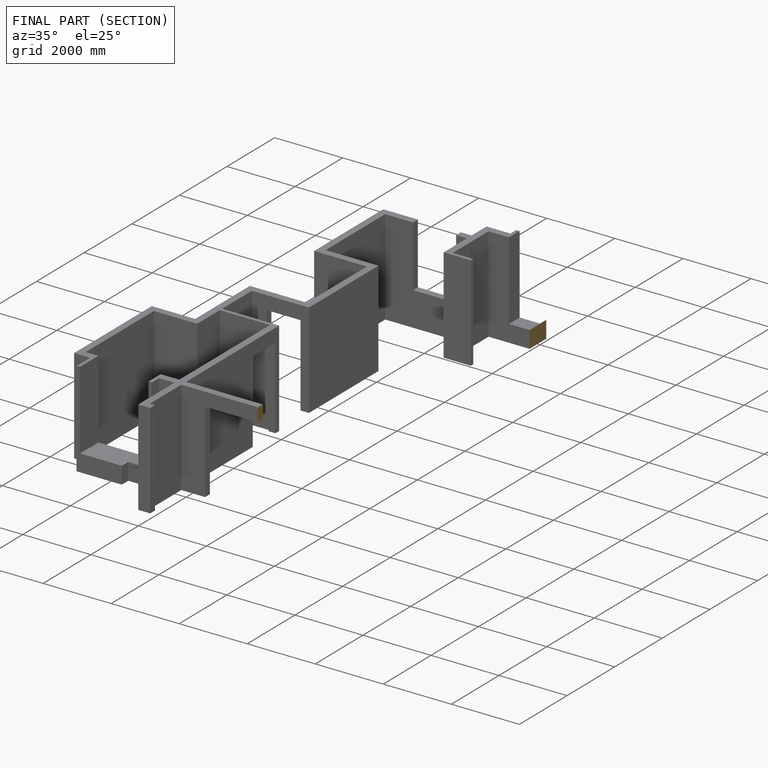
[diagram: finished part — half-section view (interior)]
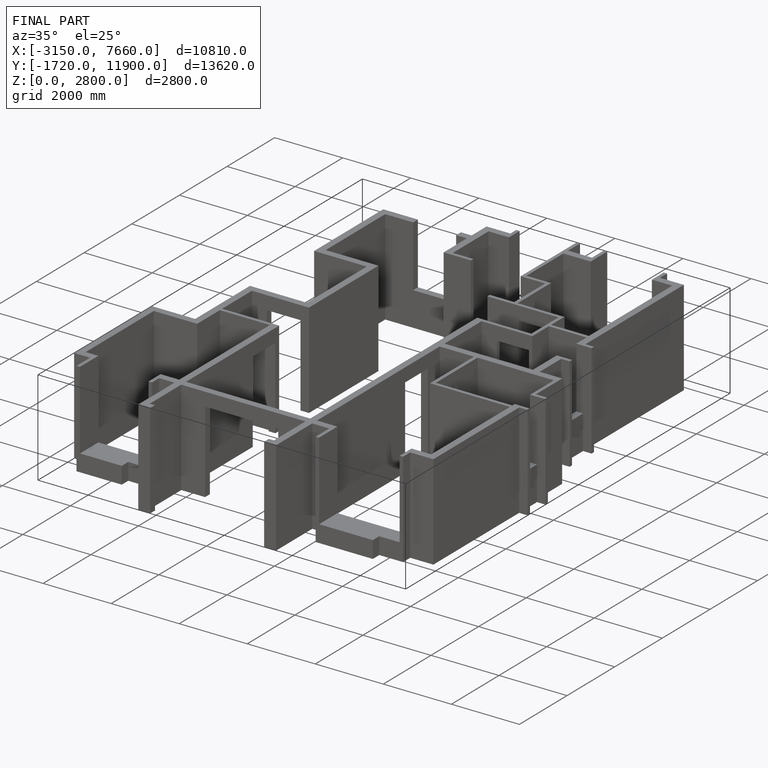
[diagram: finished part — iso view with bounding-box wireframe]
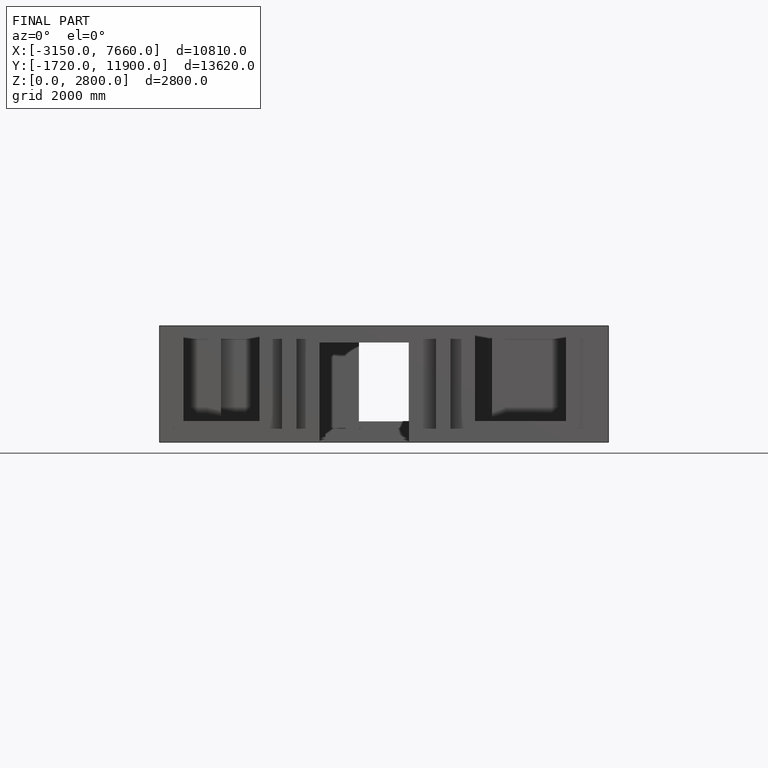
[diagram: finished part — front view with bounding-box wireframe]
